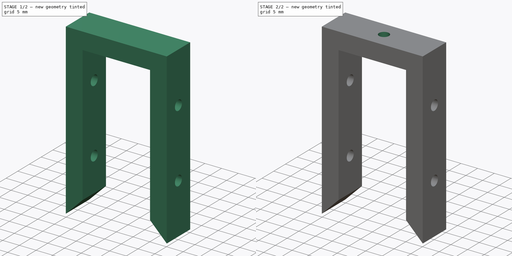
[diagram: build sequence overview — one tinted view per stage of 2, left to right]
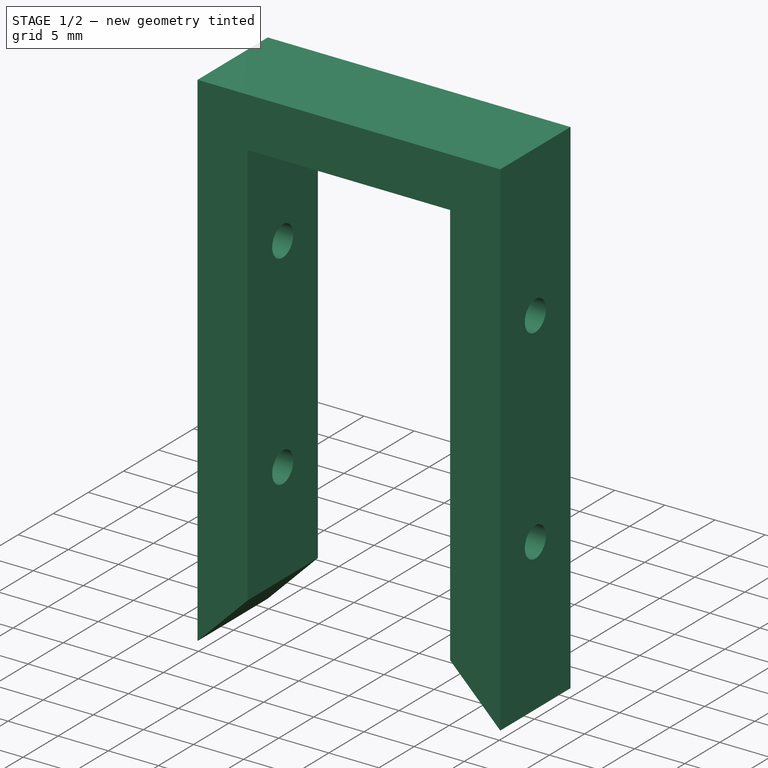
[diagram: stage 1 of 2 — iso view after this stage's code; geometry added in this stage tinted green]
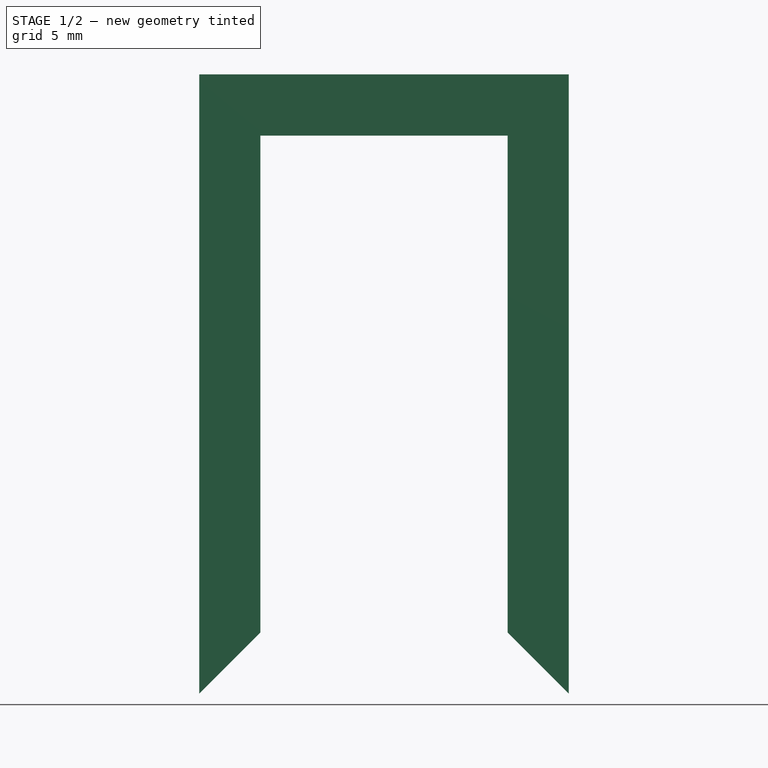
[diagram: stage 1 of 2 — front view after this stage's code; geometry added in this stage tinted green]
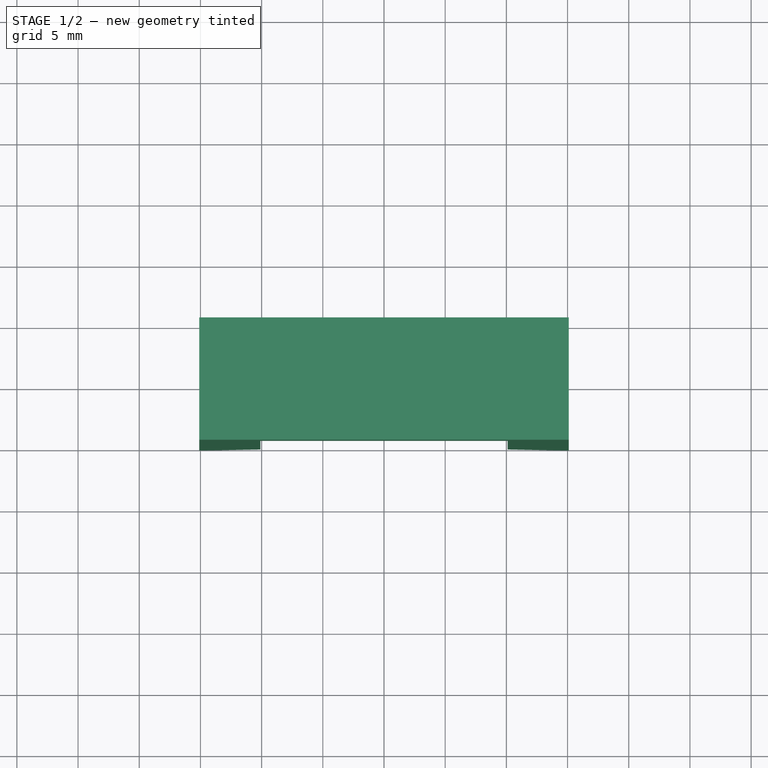
[diagram: stage 1 of 2 — top view after this stage's code; geometry added in this stage tinted green]
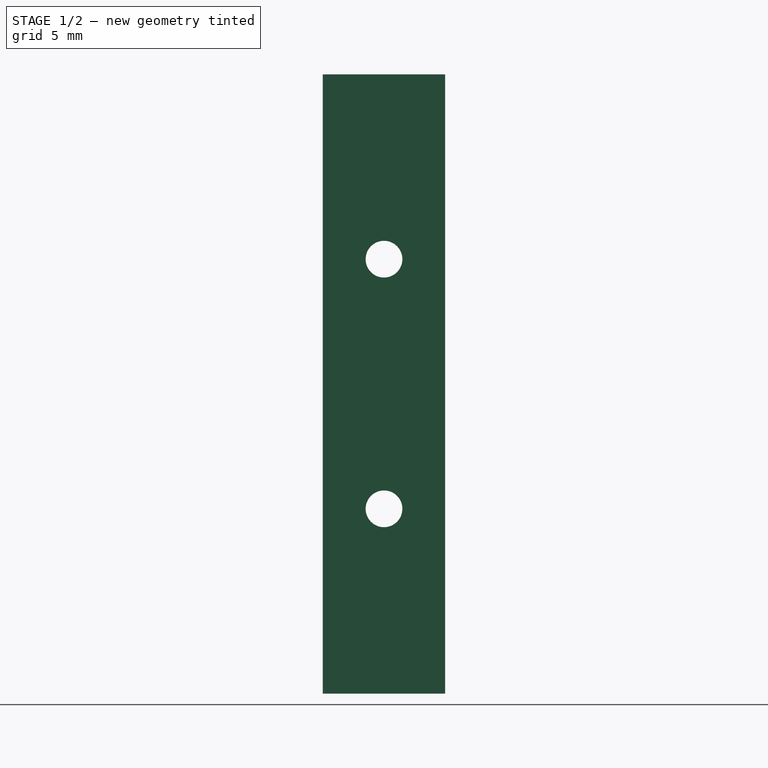
[diagram: stage 1 of 2 — right view after this stage's code; geometry added in this stage tinted green]
FCSTD DOCUMENT  (FreeCAD 0.20R29177 (Git))
Label: rail-stack
License: All rights reserved
LicenseURL: http://en.wikipedia.org/wiki/All_rights_reserved
objects: Sketcher::SketchObject×3, PartDesign::Pocket×2, PartDesign::Pad×1, PartDesign::Body×1
note: 10 computed .brp shape members not serialized (recipe doc carries the construction recipe); baked Part::Feature solids carry a one-line shape summary decoded from their .brp

FEATURE [Sketcher::SketchObject] Sketch
  FullyConstrained = true
  MapMode = 5
  Placement = pos=(0,0,0) rot=(1,0,0;1.5708rad)
  Support = -> [XZ_Plane]
  sketch-geometry (16):
    g0: LineSegment StartX=-10.1 StartY=20.3 StartZ=0 EndX=10.1 EndY=20.3 EndZ=0
    g1: LineSegment StartX=10.1 StartY=20.3 StartZ=0 EndX=10.1 EndY=0.1 EndZ=0
    g2: LineSegment StartX=10.1 StartY=0.1 StartZ=0 EndX=-10.1 EndY=0.1 EndZ=0
    g3: LineSegment StartX=-10.1 StartY=0.1 StartZ=0 EndX=-10.1 EndY=20.3 EndZ=0
    g4: LineSegment StartX=-10.1 StartY=-0.1 StartZ=0 EndX=10.1 EndY=-0.1 EndZ=0
    g5: LineSegment StartX=10.1 StartY=-0.1 StartZ=0 EndX=10.1 EndY=-20.3 EndZ=0
    g6: LineSegment StartX=10.1 StartY=-20.3 StartZ=0 EndX=-10.1 EndY=-20.3 EndZ=0
    g7: LineSegment StartX=-10.1 StartY=-20.3 StartZ=0 EndX=-10.1 EndY=-0.1 EndZ=0
    g8: LineSegment StartX=-10.1 StartY=20.3 StartZ=0 EndX=10.1 EndY=20.3 EndZ=0
    g9: LineSegment StartX=10.1 StartY=20.3 StartZ=0 EndX=10.1 EndY=-20.3 EndZ=0
    g10: LineSegment StartX=-10.1 StartY=-20.3 StartZ=0 EndX=-10.1 EndY=20.3 EndZ=0
    g11: LineSegment StartX=-15.1 StartY=25.3 StartZ=0 EndX=15.1 EndY=25.3 EndZ=0
    g12: LineSegment StartX=15.1 StartY=25.3 StartZ=0 EndX=15.1 EndY=-25.3 EndZ=0
    g13: LineSegment StartX=-15.1 StartY=-25.3 StartZ=0 EndX=-15.1 EndY=25.3 EndZ=0
    g14: LineSegment StartX=-15.1 StartY=-25.3 StartZ=0 EndX=-10.1 EndY=-20.3 EndZ=0
    g15: LineSegment StartX=10.1 StartY=-20.3 StartZ=0 EndX=15.1 EndY=-25.3 EndZ=0
  constraints (41):
    c: Coincident(g0,g1)
    c: Coincident(g1,g2)
    c: Coincident(g2,g3)
    c: Coincident(g3,g0)
    c: Horizontal(g0)
    c: Vertical(g1)
    c: Vertical(g3)
    c: Coincident(g4,g5)
    c: Coincident(g5,g6)
    c: Coincident(g6,g7)
    c: Coincident(g7,g4)
    c: Horizontal(g4)
    c: Horizontal(g6)
    c: Vertical(g5)
    c: Vertical(g7)
    c: Equal(g4,g2)
    c: Equal(g1,g5)
    c: Equal(g4,g5)
    c: Symmetric(g1,g2,g-2)
    c: DistanceY(g1,g1) = 20.2
    c: DistanceY(g4,g1) = 0.2
    c: Symmetric(g4,g2,g-1)
    c: Coincident(g8,g9)
    c: Coincident(g10,g8)
    c: Horizontal(g8)
    c: Vertical(g9)
    c: Coincident(g8,g0)
    c: Coincident(g9,g5)
    c: Coincident(g11,g12)
    c: Coincident(g13,g11)
    c: Vertical(g12)
    c: DistanceX(g11,g8) = 5
    c: Symmetric(g11,g11,g-2)
    c: DistanceY(g8,g11) = 5
    c: Symmetric(g13,g11,g-1)
    c: Coincident(g15,g9)
    c: Coincident(g15,g12)
    c: Horizontal(g13,g12)
    c: Coincident(g13,g14)
    c: Coincident(g6,g10)
    c: Coincident(g6,g14)
FEATURE [PartDesign::Pad] Pad
  Direction = (0,-1,2e-16)
  Length = 10
  Length2 = 10
  Midplane = true
  Placement = pos=(0,0,0) rot=(1,0,0;1.5708rad)
  Profile = -> Sketch
  ReferenceAxis = -> Sketch [N_Axis]
  Type = 0
FEATURE [Sketcher::SketchObject] Sketch001
  FullyConstrained = true
  MapMode = 5
  Placement = pos=(0,0,0) rot=(0.57735,0.57735,0.57735;2.0944rad)
  Support = -> [YZ_Plane]
  sketch-geometry (11):
    g0: LineSegment StartX=-10.1 StartY=20.3 StartZ=0 EndX=10.1 EndY=20.3 EndZ=0
    g1: LineSegment StartX=10.1 StartY=20.3 StartZ=0 EndX=10.1 EndY=0.1 EndZ=0
    g2: LineSegment StartX=10.1 StartY=0.1 StartZ=0 EndX=-10.1 EndY=0.1 EndZ=0
    g3: LineSegment StartX=-10.1 StartY=0.1 StartZ=0 EndX=-10.1 EndY=20.3 EndZ=0
    g4: LineSegment StartX=-10.1 StartY=-0.1 StartZ=0 EndX=10.1 EndY=-0.1 EndZ=0
    g5: LineSegment StartX=10.1 StartY=-0.1 StartZ=0 EndX=10.1 EndY=-20.3 EndZ=0
    g6: LineSegment StartX=10.1 StartY=-20.3 StartZ=0 EndX=-10.1 EndY=-20.3 EndZ=0
    g7: LineSegment StartX=-10.1 StartY=-20.3 StartZ=0 EndX=-10.1 EndY=-0.1 EndZ=0
    g8: Circle CenterX=0 CenterY=10.2 CenterZ=0 NormalX=0 NormalY=0 NormalZ=1 AngleXU=0 Radius=1.5
    g9: Circle CenterX=0 CenterY=-10.2 CenterZ=0 NormalX=0 NormalY=0 NormalZ=1 AngleXU=0 Radius=1.5
    g10: GeomPoint X=-10.1 Y=10.2 Z=0
  constraints (28):
    c: Coincident(g0,g1)
    c: Coincident(g1,g2)
    c: Coincident(g2,g3)
    c: Coincident(g3,g0)
    c: Horizontal(g0)
    c: Vertical(g1)
    c: Vertical(g3)
    c: Coincident(g4,g5)
    c: Coincident(g5,g6)
    c: Coincident(g6,g7)
    c: Coincident(g7,g4)
    c: Horizontal(g4)
    c: Horizontal(g6)
    c: Vertical(g5)
    c: Vertical(g7)
    c: Equal(g4,g2)
    c: Equal(g1,g5)
    c: Equal(g4,g5)
    c: Symmetric(g1,g2,g-2)
    c: DistanceY(g1,g1) = 20.2
    c: DistanceY(g4,g1) = 0.2
    c: Symmetric(g4,g2,g-1)
    c: Diameter(g8) = 3
    c: Equal(g8,g9)
    c: Symmetric(g9,g8,g-1)
    c: Symmetric(g2,g0,g10)
    c: Horizontal(g8,g10)
    c: PointOnObject(g8,g-2)
FEATURE [PartDesign::Pocket] Pocket
  BaseFeature = -> Pad
  Direction = (-1,2e-16,-3e-16)
  Length = 5
  Length2 = 5
  Midplane = true
  Placement = pos=(0,0,0) rot=(1,0,0;1.5708rad)
  Profile = -> Sketch001
  ReferenceAxis = -> Sketch001 [N_Axis]
  Type = 1
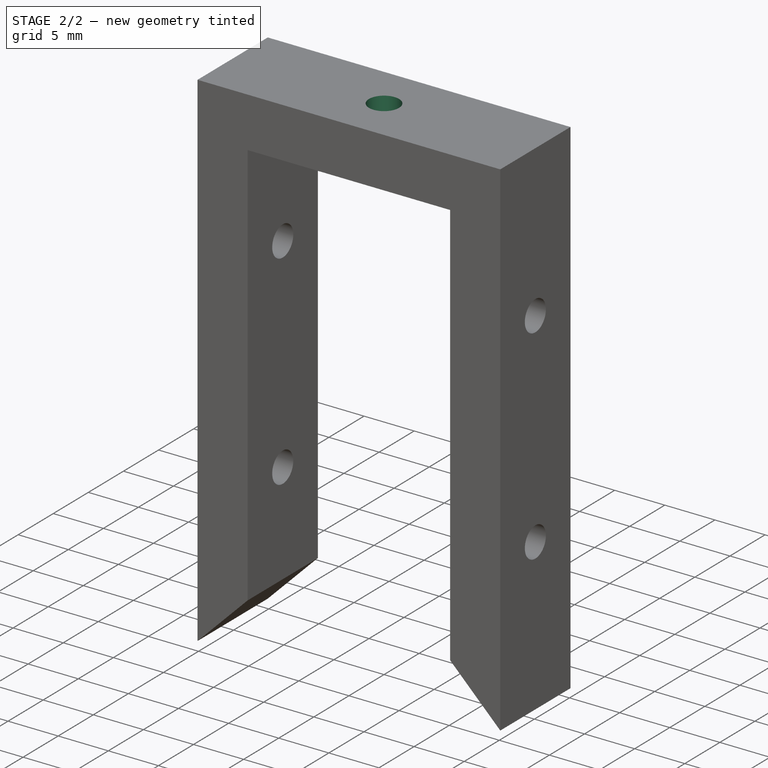
[diagram: stage 2 of 2 — iso view after this stage's code; geometry added in this stage tinted green]
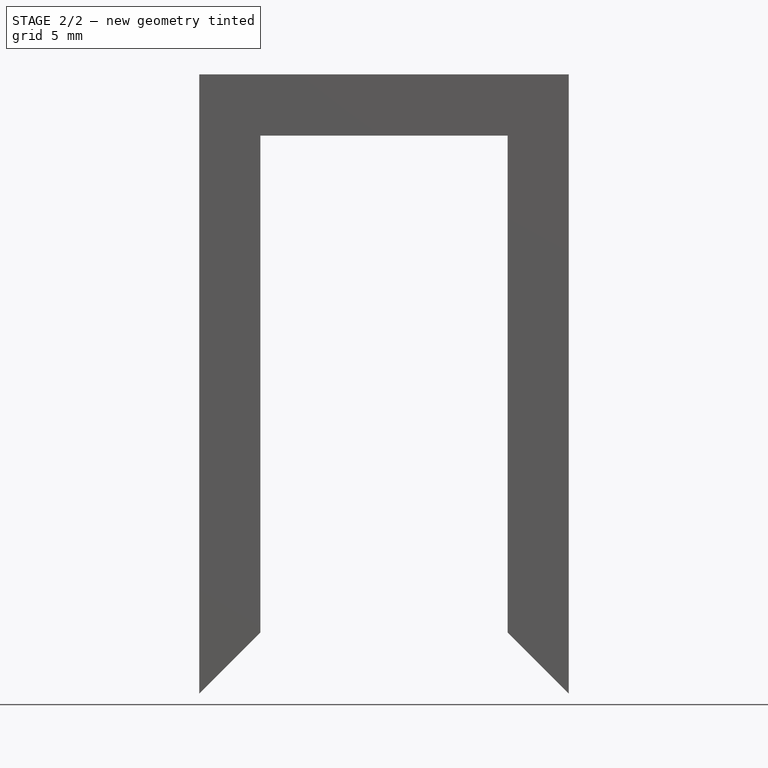
[diagram: stage 2 of 2 — front view after this stage's code; geometry added in this stage tinted green]
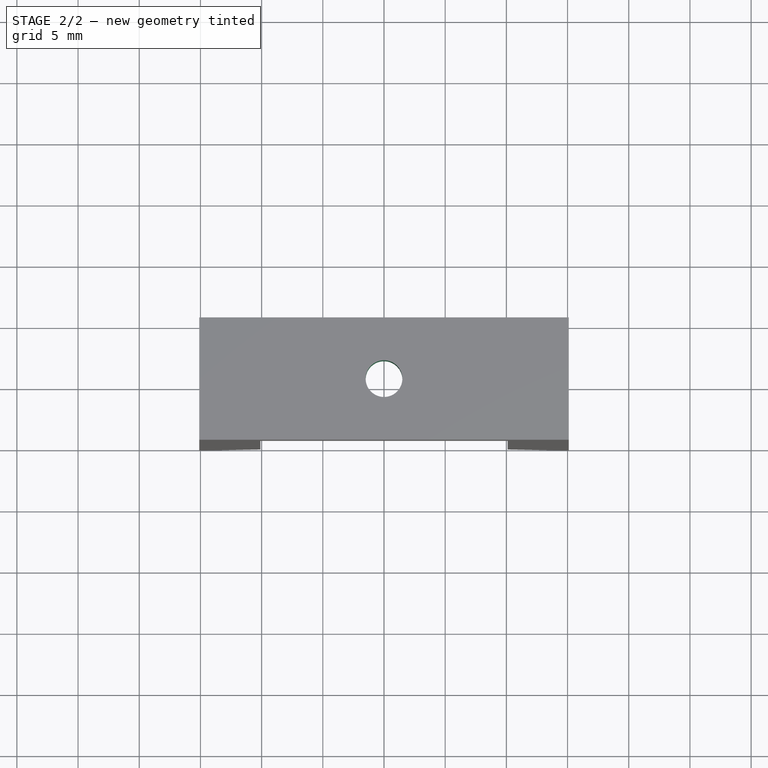
[diagram: stage 2 of 2 — top view after this stage's code; geometry added in this stage tinted green]
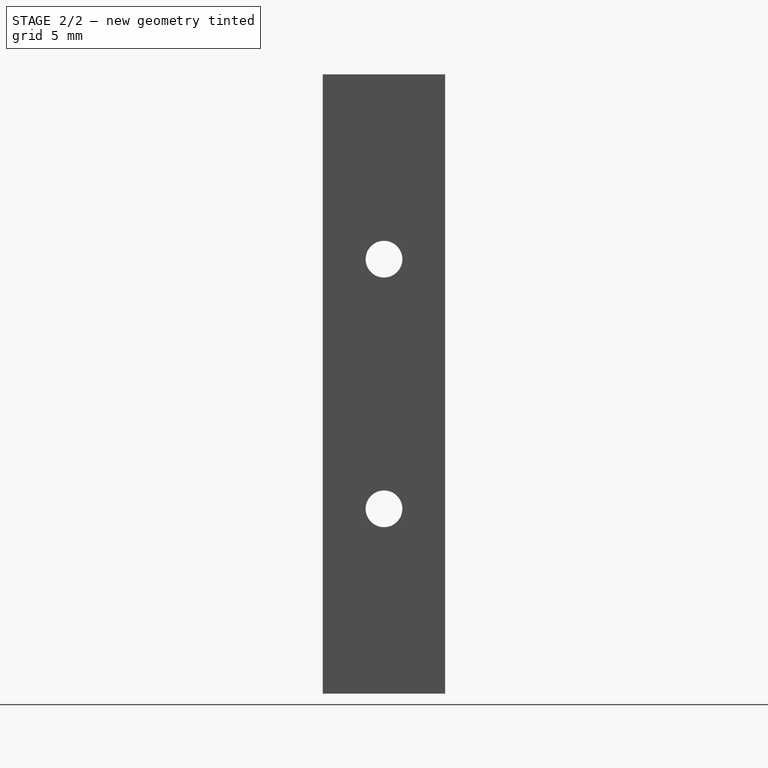
[diagram: stage 2 of 2 — right view after this stage's code; geometry added in this stage tinted green]
FEATURE [Sketcher::SketchObject] Sketch002
  FullyConstrained = true
  MapMode = 5
  Support = -> [XY_Plane]
  sketch-geometry (1):
    g0: Circle CenterX=0 CenterY=0 CenterZ=0 NormalX=0 NormalY=0 NormalZ=1 AngleXU=0 Radius=1.5
  constraints (2):
    c: Coincident(g0,g-1)
    c: Diameter(g0) = 3
FEATURE [PartDesign::Pocket] Pocket001
  BaseFeature = -> Pocket
  Direction = (0,0,-1)
  Length = 5
  Length2 = 5
  Midplane = true
  Placement = pos=(0,0,0) rot=(1,0,0;1.5708rad)
  Profile = -> Sketch002
  ReferenceAxis = -> Sketch002 [N_Axis]
  Type = 1
FEATURE [PartDesign::Body] Body
  Group = -> [Sketch,Pad,Sketch001,Pocket,Sketch002,Pocket001]
  Origin = -> Origin
  Tip = -> Pocket001
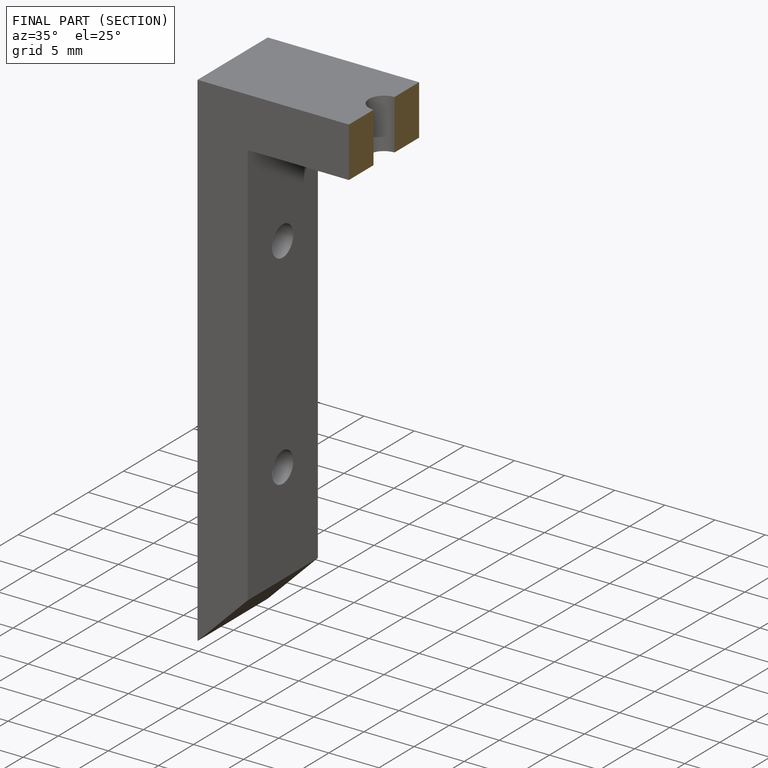
[diagram: finished part — half-section view (interior)]
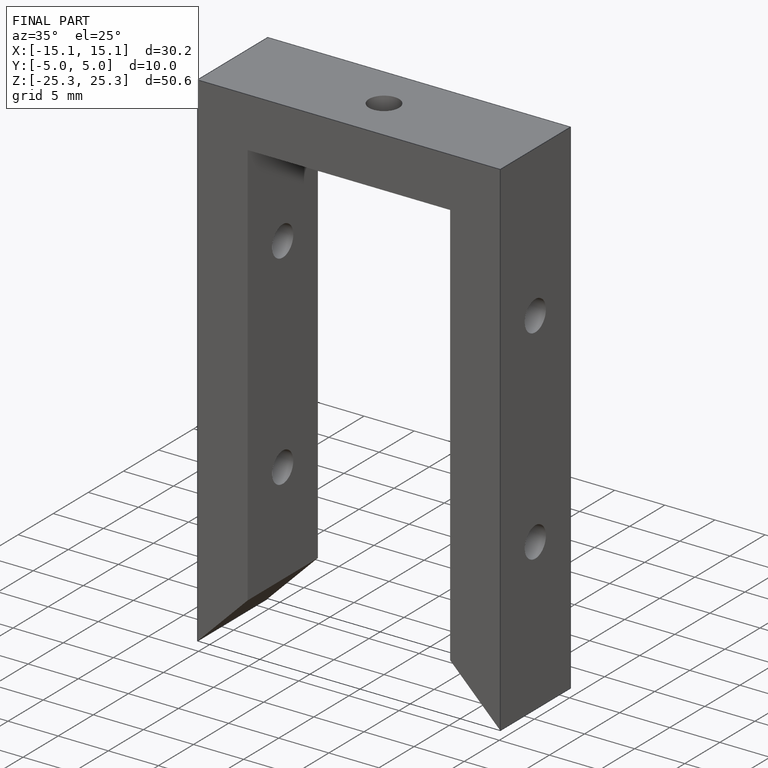
[diagram: finished part — iso view with bounding-box wireframe]
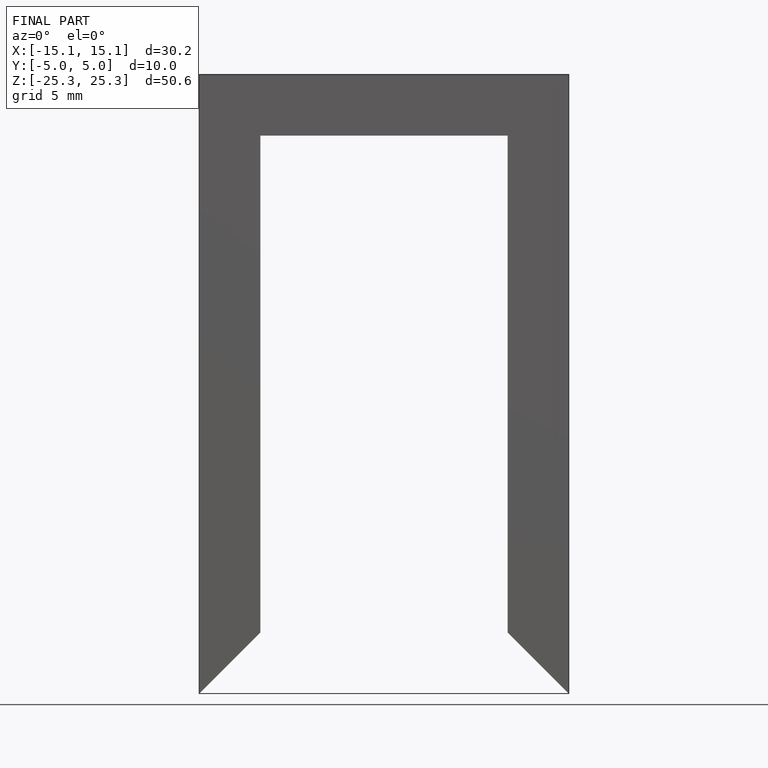
[diagram: finished part — front view with bounding-box wireframe]
